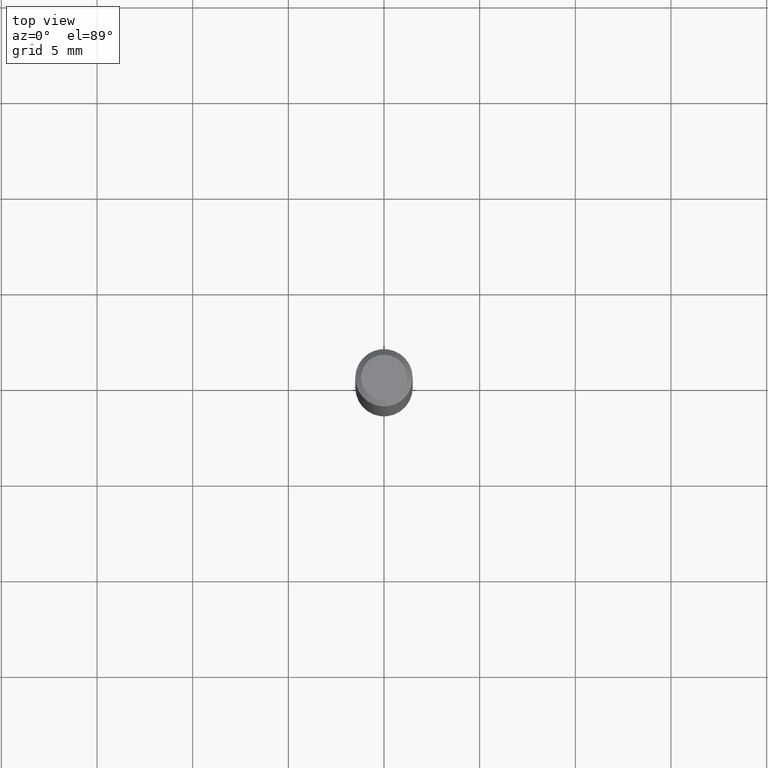
[diagram: clean part render]
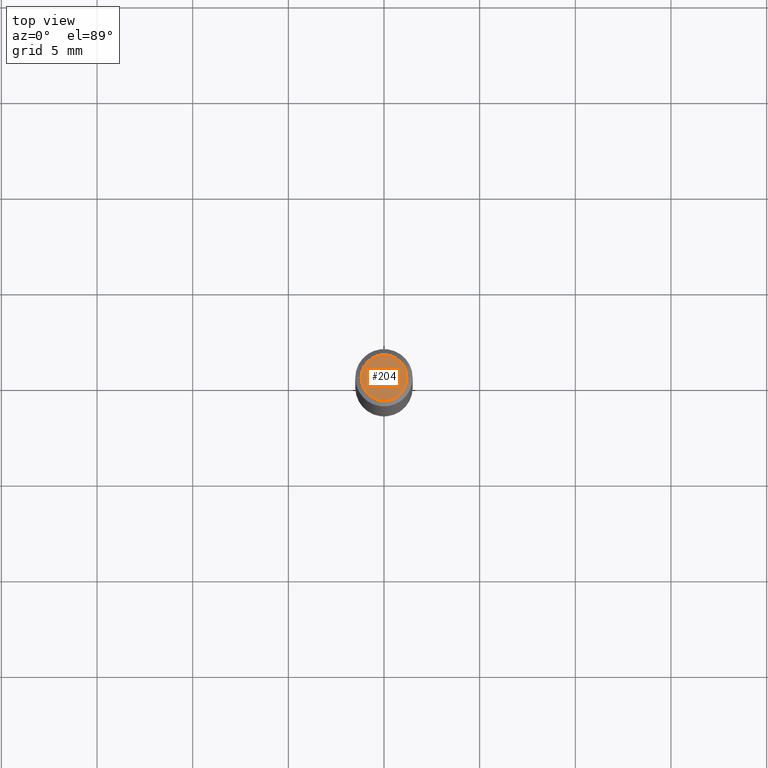
[diagram: same view with one face highlighted and labeled with its STEP entity id]
A machine part, top view. The second image highlights one B-rep face of the part: STEP entity #204.
In plain terms, the highlighted planar face has unit normal (0, -0, -1).
Its self-contained STEP definition (entity closure, byte-faithful):
#44 = DIRECTION ( 'NONE',  ( 1.000000000000000000, -6.982962677686266711E-15, 4.876185090822587894E-29 ) ) ;
#58 = EDGE_LOOP ( 'NONE', ( #443, #177 ) ) ;
#68 = CIRCLE ( 'NONE', #83, 0.04724000000000000421 ) ;
#82 = DIRECTION ( 'NONE',  ( -2.445468806185136597E-29, 3.491481338843145583E-15, 1.000000000000000000 ) ) ;
#83 = AXIS2_PLACEMENT_3D ( 'NONE', #238, #82, #44 ) ;
#87 = DIRECTION ( 'NONE',  ( -1.000000000000000000, 6.982962677686265922E-15, -4.876176775795935793E-29 ) ) ;
#100 = VERTEX_POINT ( 'NONE', #418 ) ;
#177 = ORIENTED_EDGE ( 'NONE', *, *, #225, .T. ) ;
#188 = CIRCLE ( 'NONE', #229, 0.04724000000000000421 ) ;
#199 = FACE_OUTER_BOUND ( 'NONE', #58, .T. ) ;
#204 = ADVANCED_FACE ( 'NONE', ( #199 ), #359, .F. ) ;
#210 = AXIS2_PLACEMENT_3D ( 'NONE', #242, #394, #87 ) ;
#212 = DIRECTION ( 'NONE',  ( -2.445468806185136597E-29, 3.491481338843145583E-15, 1.000000000000000000 ) ) ;
#225 = EDGE_CURVE ( 'NONE', #255, #100, #68, .T. ) ;
#229 = AXIS2_PLACEMENT_3D ( 'NONE', #401, #212, #474 ) ;
#238 = CARTESIAN_POINT ( 'NONE',  ( 8.265746106709734507E-48, -1.180129479067563789E-33, -3.380025165646692144E-19 ) ) ;
#242 = CARTESIAN_POINT ( 'NONE',  ( 4.132873053354867254E-48, -5.900647395337818946E-34, -1.690012582823346072E-19 ) ) ;
#255 = VERTEX_POINT ( 'NONE', #312 ) ;
#312 = CARTESIAN_POINT ( 'NONE',  ( 0.04724000000000000421, -3.852183633974369345E-16, -3.380025165621689721E-19 ) ) ;
#359 = PLANE ( 'NONE',  #210 ) ;
#383 = EDGE_CURVE ( 'NONE', #100, #255, #188, .T. ) ;
#394 = DIRECTION ( 'NONE',  ( 2.438088387897960049E-29, -3.491481338843145188E-15, -1.000000000000000000 ) ) ;
#401 = CARTESIAN_POINT ( 'NONE',  ( 8.265746106709734507E-48, -1.180129479067563789E-33, -3.380025165646692144E-19 ) ) ;
#418 = CARTESIAN_POINT ( 'NONE',  ( -0.04724000000000000421, 3.504923541997677355E-16, -3.380025165670481712E-19 ) ) ;
#443 = ORIENTED_EDGE ( 'NONE', *, *, #383, .T. ) ;
#474 = DIRECTION ( 'NONE',  ( 1.000000000000000000, -6.982962677686266711E-15, 4.876185090822587894E-29 ) ) ;